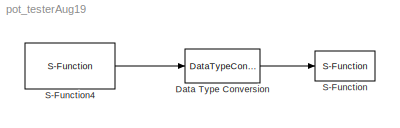
MODEL pot_testerAug19
KIND model
BLOCK [DataTypeConversion] Data Type Conversion
  OutDataType = fixdt(1, 16)
  OutDataTypeMode = uint32
  OutDataTypeStr = uint32
  OutScaling = 2^0
  RndMeth = Floor
  SaturateOnIntegerOverflow = off
BLOCK [S-Function] S-Function
  EnableBusSupport = off
  FunctionName = printOut
  Ports = [1]
BLOCK [S-Function] S-Function4
  EnableBusSupport = off
  FunctionName = TT_pot_readerV4
  Ports = [0, 1]
LINE Data Type Conversion:1 -> S-Function:1
LINE S-Function4:1 -> Data Type Conversion:1
